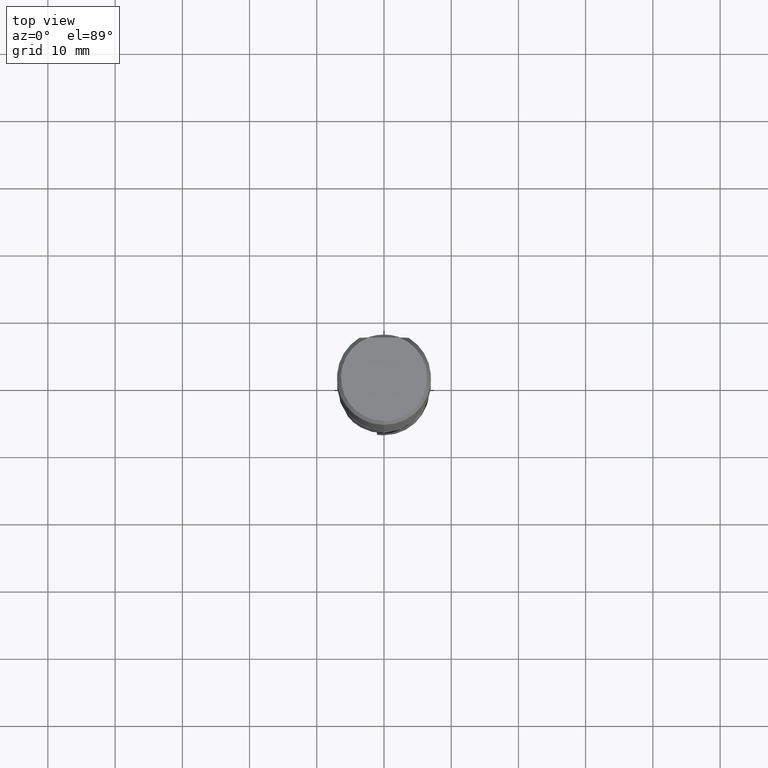
[diagram: clean part render]
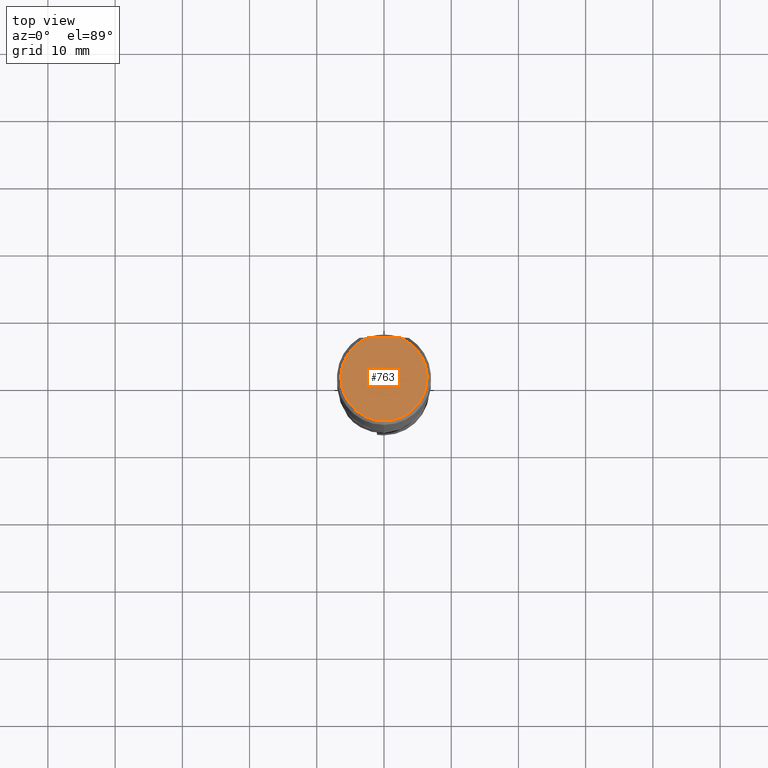
[diagram: same view with one face highlighted and labeled with its STEP entity id]
A machine part, top view. The second image highlights one B-rep face of the part: STEP entity #763.
In plain terms, the highlighted planar face has unit normal (-0, 0, 1).
Its self-contained STEP definition (entity closure, byte-faithful):
#425=VERTEX_POINT('',#1001);
#557=EDGE_CURVE('',#425,#759,#1146,.T.);
#605=VERTEX_POINT('',#1198);
#693=EDGE_CURVE('',#425,#605,#1295,.T.);
#759=VERTEX_POINT('',#1362);
#761=EDGE_CURVE('',#759,#605,#1364,.T.);
#763=ADVANCED_FACE('',(#1366),#1367,.T.);
#1001=CARTESIAN_POINT('',(2.32843677319676,5.98571731356432,0.0));
#1146=CIRCLE('',#5003,6.42264973081037);
#1198=CARTESIAN_POINT('',(-2.32843677319676,5.98571731356432,0.0));
#1295=LINE('',#6354,#6355);
#1362=CARTESIAN_POINT('',(7.86521766872597E-016,-6.42264973081037,0.0));
#1364=CIRCLE('',#7064,6.42264973081037);
#1366=FACE_OUTER_BOUND('',#7066,.T.);
#1367=PLANE('',#7067);
#5003=AXIS2_PLACEMENT_3D('',#7986,#7987,#7988);
#6354=CARTESIAN_POINT('',(-3.5,5.98571731356432,1.77635683940025E-015));
#6355=VECTOR('',#8124,1.0);
#7064=AXIS2_PLACEMENT_3D('',#8146,#8147,#8148);
#7066=EDGE_LOOP('',(#8150,#8151,#8152));
#7067=AXIS2_PLACEMENT_3D('',#8153,#8154,#8155);
#7986=CARTESIAN_POINT('',(0.0,0.0,0.0));
#7987=DIRECTION('',(0.0,0.0,-1.0));
#7988=DIRECTION('',(0.0,1.0,0.0));
#8124=DIRECTION('',(-1.0,0.0,0.0));
#8146=CARTESIAN_POINT('',(0.0,0.0,0.0));
#8147=DIRECTION('',(0.0,0.0,-1.0));
#8148=DIRECTION('',(0.0,1.0,0.0));
#8150=ORIENTED_EDGE('',*,*,#693,.T.);
#8151=ORIENTED_EDGE('',*,*,#761,.F.);
#8152=ORIENTED_EDGE('',*,*,#557,.F.);
#8153=CARTESIAN_POINT('',(0.0,3.21132486540519,0.0));
#8154=DIRECTION('',(-0.0,0.0,1.0));
#8155=DIRECTION('',(0.0,-1.0,0.0));